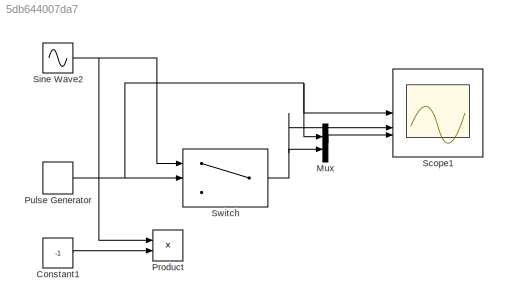
MODEL slx_5db644007da7
KIND model
CONFIG AbsTol = auto
CONFIG EnableMultiTasking = off
CONFIG FixedStep = auto
CONFIG MaxStep = auto
CONFIG MinStep = auto
CONFIG RelTol = 1e-3
CONFIG SampleTimeConstraint = Unconstrained
CONFIG SolverName = VariableStepAuto
CONFIG StartTime = 0.0
CONFIG StopTime = 10.0
BLOCK [Constant] Constant1
  Value = -1
BLOCK [Mux] Mux
  DisplayOption = bar
  Inputs = 2
BLOCK [Product] Product
BLOCK [DiscretePulseGenerator] Pulse Generator
  PulseType = Time based
  PulseWidth = 50
BLOCK [Scope] Scope1
  Floating = off
  NumInputPorts = 3
  ScopeSpecificationString = Simulink.scopes.TimeScopeBlockCfg('CurrentConfiguration', extmgr.ConfigurationSet(extmgr.Configuration('Core','General UI',true),extmgr.Configuration('Core','Source UI',true),extmgr.Configuration('Sources','WiredSimulink',true,'DataLoggingVariableName','ScopeData1'),extmgr.Configuration('Visuals','Time Domain',true,'SerializedDisplays',{struct('MinYLimReal','-1.25','MaxYLimReal','1.25','YLabelReal...<+1580ch>
BLOCK [Sin] Sine Wave2
  Frequency = 20
  SampleTime = 0.0001
BLOCK [Switch] Switch
  Criteria = u2 > Threshold
  InputSameDT = off
  SaturateOnIntegerOverflow = off
  Threshold = 0.5
LINE Constant1:1 -> Product:2
LINE Mux:1 -> Scope1:3
NET Pulse Generator:1 -> Mux:1, Scope1:1, Switch:2
NET Sine Wave2:1 -> Product:1, Switch:1
NET Switch:1 -> Mux:2, Scope1:2
note: NET lines group one-source signal fan-out (src -> all destinations, sorted); 1:1 wires keep LINE
